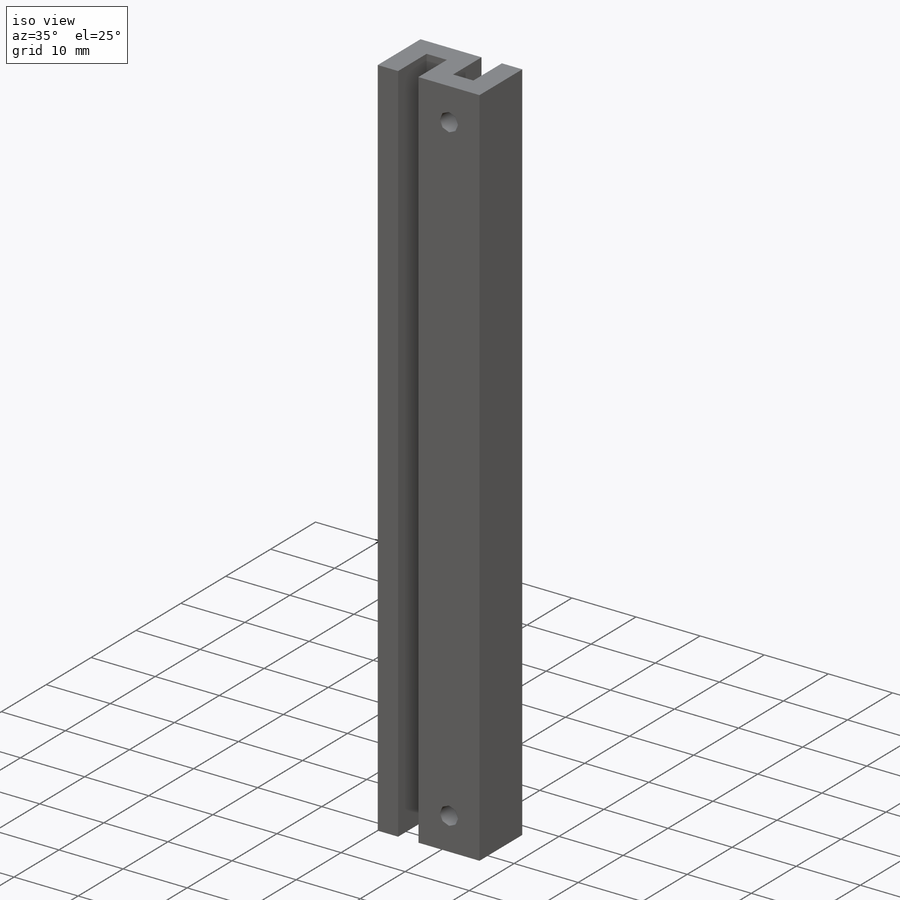
[diagram: iso view]
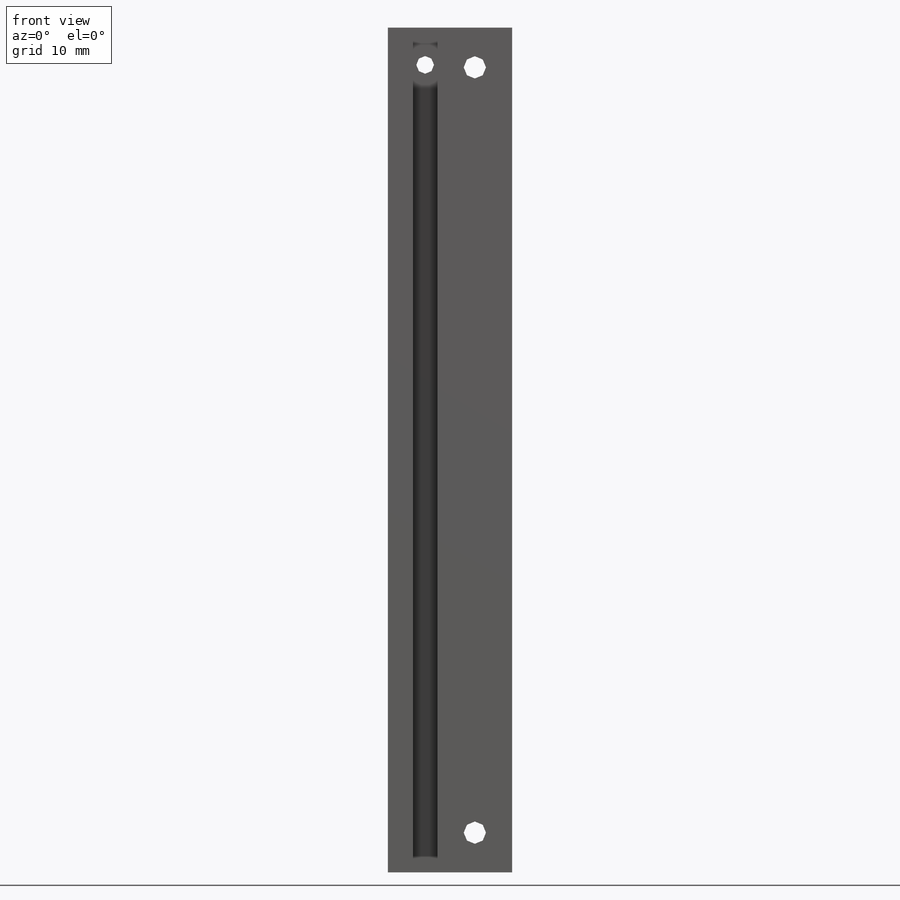
[diagram: front view]
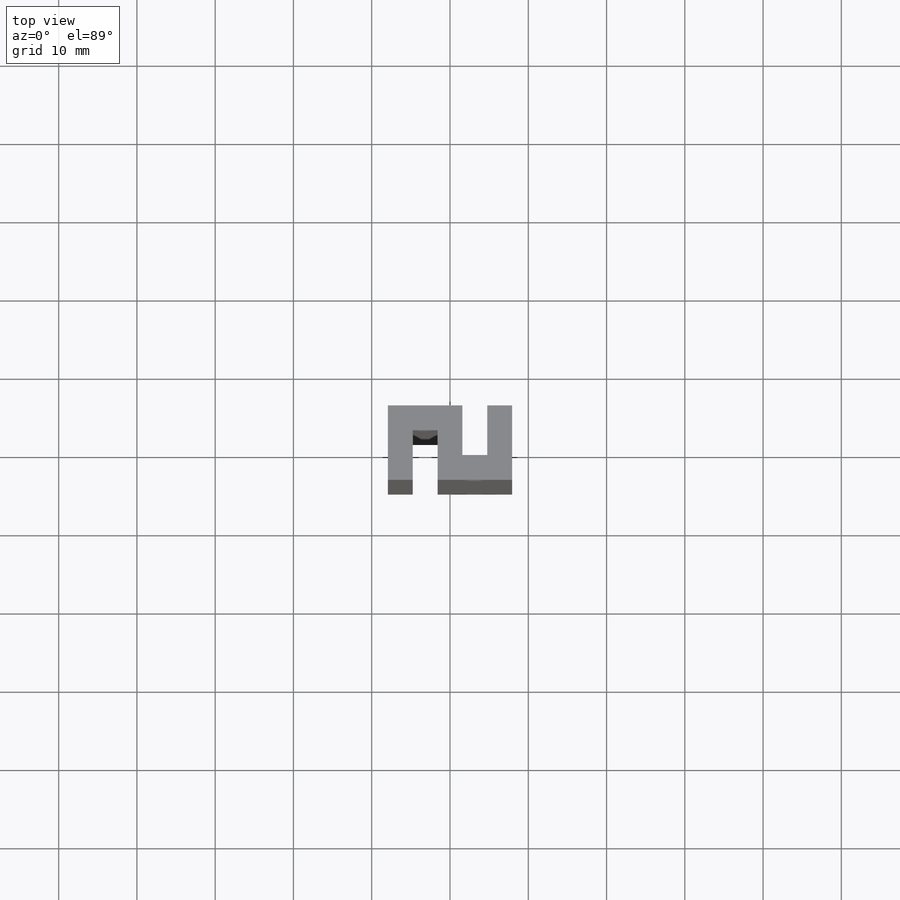
[diagram: top view]
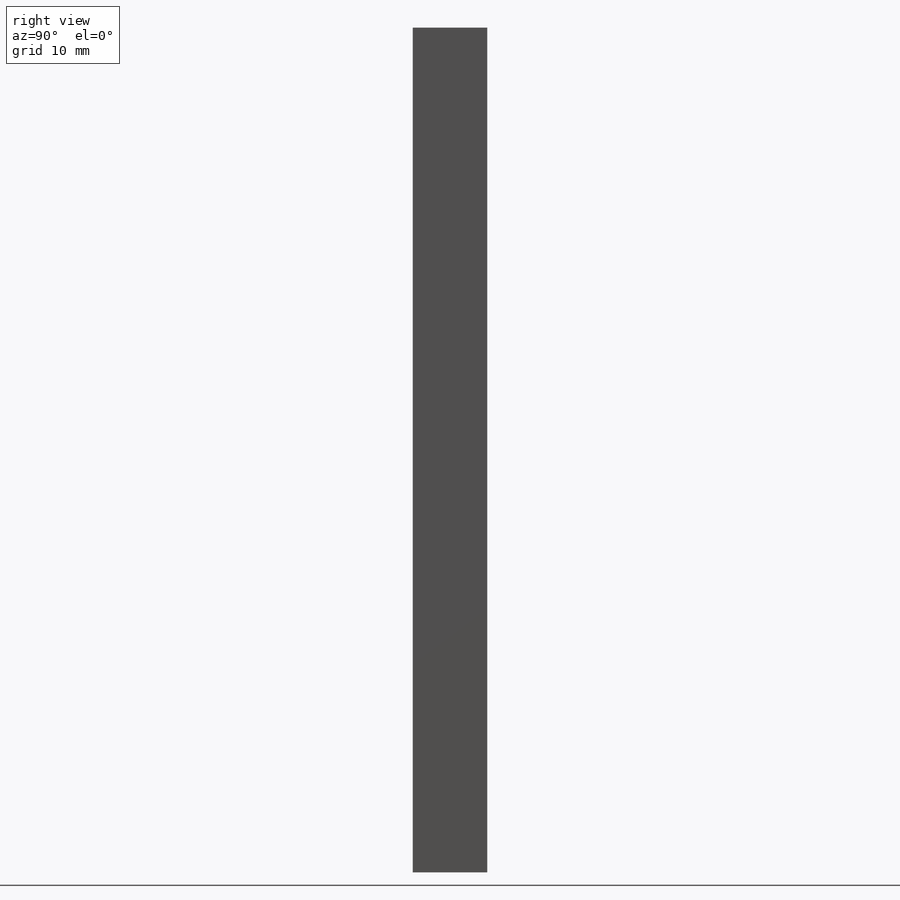
[diagram: right view]
SOLIDWORKS PART (.sldprt)
format: sldprt  version: not decoded by parser v0  size: 194,048 bytes
history: native  units: mm
features: sketch x5, cut_extrude x2, material x1, extrude x1, hole x1 (+16 scaffold rows collapsed)
feature tree (26):
  scaffold x16  (default folders/planes/origin — collapsed)
  material  "6061 Alloy"
  sketch  "Sketch1"  dims[D1=9.525mm D2=15.875mm D3=3.175mm D4=3.175mm D5=3.175mm D6=3.175mm D7=3.175mm D8=3.175mm]
  extrude  "Extrude1"  Depth=107.95mm
  sketch  "Sketch2"  dims[c1.D2=2.2606mm c1.D3=~2.491628mm c1.D1=5.08mm c2.D3=5.08mm]
  cut_extrude  "Extrude2"  [1 undecoded]
  sketch  "Sketch3"  dims[D1=4.7625mm]
  cut_extrude  "Extrude3"  [1 undecoded]
  hole  "#4-40 Tapped Hole1"  Diameter=2.2606mm Depth=8.89mm
  sketch  "3DSketch1"
  sketch  "Sketch4"  dims[hole-wizard template sketch: 29 standard entries collapsed; hole parameters kept: c8.Tap Drill Depth=8.89mm c8.Thread Major Dia.=2.8448mm c8.Thread Depth=5.588mm c8.D5=~14.816244mm c8.Drill Angle=118.0deg]
decode coverage: 6 of 9 modeling features carry decoded parameters
note: ~ marks probable driven/reference dimensions
note: 2 parameter values undecoded
note: suppression state not decoded; provenance and decode notes live in map.json
